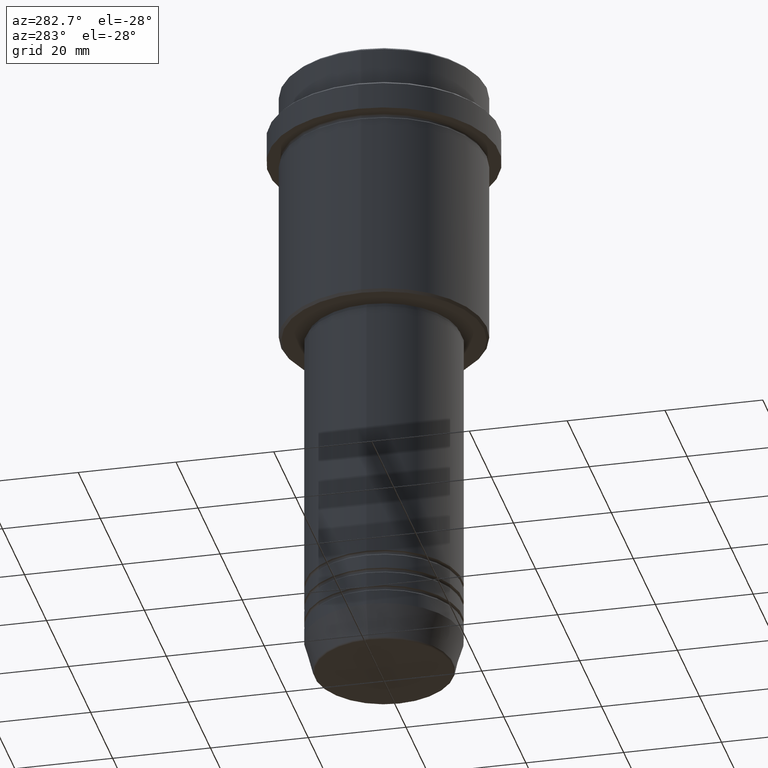
[diagram: clean part render]
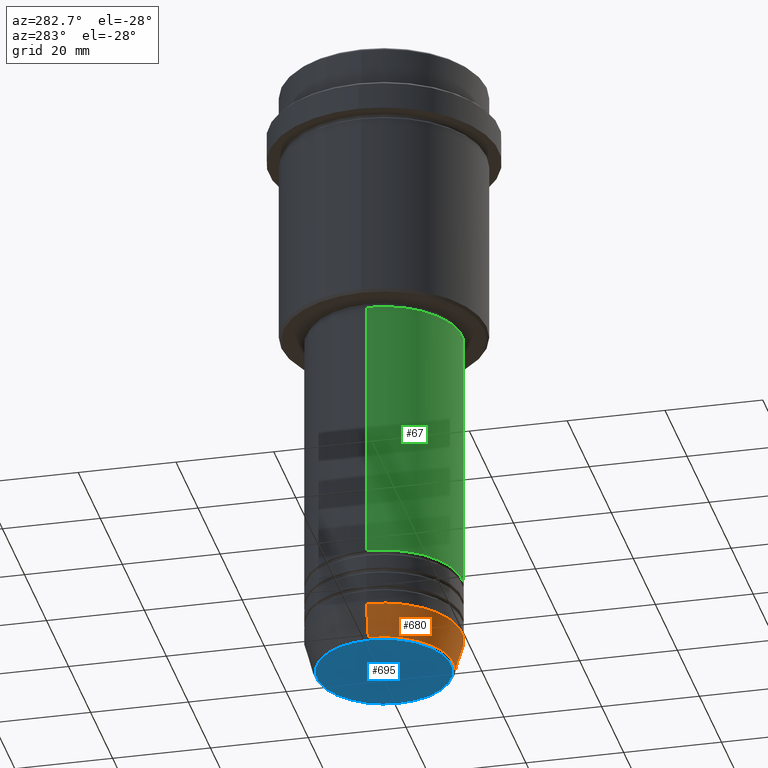
[diagram: same view with three faces highlighted in distinct colors, each labeled with its STEP entity id]
A machine part, auxiliary view with three faces highlighted in distinct colors.
Their STEP definitions:

[orange] entity #680 — the highlighted conical surface has half-angle 15 deg.
#19 = ORIENTED_EDGE ( 'NONE', *, *, #444, .F. ) ;
#30 = VERTEX_POINT ( 'NONE', #107 ) ;
#33 = VECTOR ( 'NONE', #190, 1000.000000000000000 ) ;
#92 = CARTESIAN_POINT ( 'NONE',  ( 0.000000000000000000, 0.000000000000000000, -123.0000000000000000 ) ) ;
#107 = CARTESIAN_POINT ( 'NONE',  ( 14.22365507213718949, 0.000000000000000000, -129.6294095225512706 ) ) ;
#146 = CIRCLE ( 'NONE', #386, 14.22365507213718949 ) ;
#153 = FACE_OUTER_BOUND ( 'NONE', #269, .T. ) ;
#172 = DIRECTION ( 'NONE',  ( -0.000000000000000000, -0.000000000000000000, 1.000000000000000000 ) ) ;
#184 = ORIENTED_EDGE ( 'NONE', *, *, #947, .F. ) ;
#190 = DIRECTION ( 'NONE',  ( 0.2588190451025213501, 0.000000000000000000, 0.9659258262890680902 ) ) ;
#241 = CARTESIAN_POINT ( 'NONE',  ( -14.22365507213718949, 1.850665122131323731E-15, -129.6294095225512706 ) ) ;
#248 = CARTESIAN_POINT ( 'NONE',  ( 16.00000000000000000, 0.000000000000000000, -123.0000000000000000 ) ) ;
#269 = EDGE_LOOP ( 'NONE', ( #184, #640, #447, #19 ) ) ;
#377 = EDGE_CURVE ( 'NONE', #1268, #30, #146, .T. ) ;
#386 = AXIS2_PLACEMENT_3D ( 'NONE', #848, #1417, #1178 ) ;
#390 = CARTESIAN_POINT ( 'NONE',  ( -16.00000000000000000, 1.959434878635765131E-15, -123.0000000000000000 ) ) ;
#444 = EDGE_CURVE ( 'NONE', #732, #1015, #529, .T. ) ;
#447 = ORIENTED_EDGE ( 'NONE', *, *, #1117, .T. ) ;
#482 = DIRECTION ( 'NONE',  ( 1.000000000000000000, 0.000000000000000000, 0.000000000000000000 ) ) ;
#529 = CIRCLE ( 'NONE', #813, 16.00000000000000000 ) ;
#538 = CARTESIAN_POINT ( 'NONE',  ( 0.000000000000000000, 0.000000000000000000, -123.0000000000000000 ) ) ;
#640 = ORIENTED_EDGE ( 'NONE', *, *, #377, .T. ) ;
#659 = LINE ( 'NONE', #1109, #1238 ) ;
#680 = ADVANCED_FACE ( 'NONE', ( #153 ), #1329, .T. ) ;
#705 = DIRECTION ( 'NONE',  ( 1.000000000000000000, 0.000000000000000000, 0.000000000000000000 ) ) ;
#732 = VERTEX_POINT ( 'NONE', #390 ) ;
#813 = AXIS2_PLACEMENT_3D ( 'NONE', #538, #172, #482 ) ;
#848 = CARTESIAN_POINT ( 'NONE',  ( 0.000000000000000000, 0.000000000000000000, -129.6294095225512706 ) ) ;
#947 = EDGE_CURVE ( 'NONE', #1268, #732, #659, .T. ) ;
#1015 = VERTEX_POINT ( 'NONE', #1049 ) ;
#1049 = CARTESIAN_POINT ( 'NONE',  ( 16.00000000000000000, 0.000000000000000000, -123.0000000000000000 ) ) ;
#1109 = CARTESIAN_POINT ( 'NONE',  ( -16.00000000000000000, 1.959434878635765131E-15, -123.0000000000000000 ) ) ;
#1117 = EDGE_CURVE ( 'NONE', #30, #1015, #1217, .T. ) ;
#1162 = AXIS2_PLACEMENT_3D ( 'NONE', #92, #1288, #705 ) ;
#1178 = DIRECTION ( 'NONE',  ( 1.000000000000000000, 0.000000000000000000, 0.000000000000000000 ) ) ;
#1217 = LINE ( 'NONE', #248, #33 ) ;
#1238 = VECTOR ( 'NONE', #1239, 1000.000000000000000 ) ;
#1239 = DIRECTION ( 'NONE',  ( -0.2588190451025213501, 3.169619151431772337E-17, 0.9659258262890680902 ) ) ;
#1268 = VERTEX_POINT ( 'NONE', #241 ) ;
#1288 = DIRECTION ( 'NONE',  ( -0.000000000000000000, -0.000000000000000000, 1.000000000000000000 ) ) ;
#1329 = CONICAL_SURFACE ( 'NONE', #1162, 16.00000000000000000, 0.2617993877991500740 ) ;
#1417 = DIRECTION ( 'NONE',  ( -0.000000000000000000, -0.000000000000000000, 1.000000000000000000 ) ) ;

[blue] entity #695 — the highlighted planar face has unit normal (0, -0, 1).
#3 = AXIS2_PLACEMENT_3D ( 'NONE', #826, #398, #715 ) ;
#13 = CARTESIAN_POINT ( 'NONE',  ( 0.000000000000000000, 0.000000000000000000, -130.0000000000000000 ) ) ;
#79 = CARTESIAN_POINT ( 'NONE',  ( 0.000000000000000000, 0.000000000000000000, -130.0000000000000000 ) ) ;
#86 = EDGE_CURVE ( 'NONE', #875, #198, #614, .T. ) ;
#89 = EDGE_LOOP ( 'NONE', ( #350, #220 ) ) ;
#136 = DIRECTION ( 'NONE',  ( 1.000000000000000000, 0.000000000000000000, 0.000000000000000000 ) ) ;
#198 = VERTEX_POINT ( 'NONE', #962 ) ;
#206 = DIRECTION ( 'NONE',  ( 1.000000000000000000, 0.000000000000000000, 0.000000000000000000 ) ) ;
#220 = ORIENTED_EDGE ( 'NONE', *, *, #584, .T. ) ;
#350 = ORIENTED_EDGE ( 'NONE', *, *, #86, .T. ) ;
#398 = DIRECTION ( 'NONE',  ( 0.000000000000000000, 0.000000000000000000, -1.000000000000000000 ) ) ;
#495 = PLANE ( 'NONE',  #1044 ) ;
#584 = EDGE_CURVE ( 'NONE', #198, #875, #953, .T. ) ;
#614 = CIRCLE ( 'NONE', #3, 13.74069215899265473 ) ;
#695 = ADVANCED_FACE ( 'NONE', ( #1042 ), #495, .F. ) ;
#715 = DIRECTION ( 'NONE',  ( 1.000000000000000000, 0.000000000000000000, 0.000000000000000000 ) ) ;
#826 = CARTESIAN_POINT ( 'NONE',  ( 0.000000000000000000, 0.000000000000000000, -130.0000000000000000 ) ) ;
#833 = DIRECTION ( 'NONE',  ( 0.000000000000000000, -0.000000000000000000, 1.000000000000000000 ) ) ;
#875 = VERTEX_POINT ( 'NONE', #1108 ) ;
#953 = CIRCLE ( 'NONE', #973, 13.74069215899265473 ) ;
#962 = CARTESIAN_POINT ( 'NONE',  ( -13.74069215899265473, 1.712322416342415197E-15, -130.0000000000000000 ) ) ;
#973 = AXIS2_PLACEMENT_3D ( 'NONE', #13, #1107, #136 ) ;
#1042 = FACE_OUTER_BOUND ( 'NONE', #89, .T. ) ;
#1044 = AXIS2_PLACEMENT_3D ( 'NONE', #79, #833, #206 ) ;
#1107 = DIRECTION ( 'NONE',  ( 0.000000000000000000, 0.000000000000000000, -1.000000000000000000 ) ) ;
#1108 = CARTESIAN_POINT ( 'NONE',  ( 13.74069215899265473, 0.000000000000000000, -130.0000000000000000 ) ) ;

[green] entity #67 — the highlighted cylindrical surface (partial cylindrical patch) has radius 16 mm, axis along (-0, -0, 1).
#26 = CARTESIAN_POINT ( 'NONE',  ( 16.00000000000000355, 0.000000000000000000, -55.99999999999997158 ) ) ;
#41 = DIRECTION ( 'NONE',  ( -0.000000000000000000, -0.000000000000000000, 1.000000000000000000 ) ) ;
#67 = ADVANCED_FACE ( 'NONE', ( #1272 ), #202, .T. ) ;
#120 = DIRECTION ( 'NONE',  ( -0.000000000000000000, -0.000000000000000000, 1.000000000000000000 ) ) ;
#140 = VERTEX_POINT ( 'NONE', #324 ) ;
#193 = VECTOR ( 'NONE', #856, 1000.000000000000000 ) ;
#202 = CYLINDRICAL_SURFACE ( 'NONE', #406, 16.00000000000000000 ) ;
#232 = VERTEX_POINT ( 'NONE', #462 ) ;
#274 = ORIENTED_EDGE ( 'NONE', *, *, #675, .T. ) ;
#324 = CARTESIAN_POINT ( 'NONE',  ( -16.00000000000000355, 1.959434878635765526E-15, -55.99999999999997158 ) ) ;
#342 = AXIS2_PLACEMENT_3D ( 'NONE', #990, #1294, #1082 ) ;
#362 = VECTOR ( 'NONE', #120, 1000.000000000000000 ) ;
#406 = AXIS2_PLACEMENT_3D ( 'NONE', #516, #951, #930 ) ;
#427 = LINE ( 'NONE', #1089, #362 ) ;
#462 = CARTESIAN_POINT ( 'NONE',  ( -16.00000000000000000, 1.959434878635765131E-15, -110.9999999999998721 ) ) ;
#475 = CIRCLE ( 'NONE', #1021, 16.00000000000000355 ) ;
#516 = CARTESIAN_POINT ( 'NONE',  ( 0.000000000000000000, 0.000000000000000000, 0.000000000000000000 ) ) ;
#593 = CARTESIAN_POINT ( 'NONE',  ( 16.00000000000000000, 0.000000000000000000, -110.9999999999998721 ) ) ;
#675 = EDGE_CURVE ( 'NONE', #232, #770, #1140, .T. ) ;
#770 = VERTEX_POINT ( 'NONE', #593 ) ;
#815 = CARTESIAN_POINT ( 'NONE',  ( 0.000000000000000000, 0.000000000000000000, -55.99999999999997158 ) ) ;
#841 = CARTESIAN_POINT ( 'NONE',  ( -16.00000000000000000, 1.959434878635765131E-15, 0.000000000000000000 ) ) ;
#847 = ORIENTED_EDGE ( 'NONE', *, *, #1053, .T. ) ;
#853 = VERTEX_POINT ( 'NONE', #26 ) ;
#856 = DIRECTION ( 'NONE',  ( -0.000000000000000000, -0.000000000000000000, 1.000000000000000000 ) ) ;
#889 = DIRECTION ( 'NONE',  ( 1.000000000000000000, 0.000000000000000000, 0.000000000000000000 ) ) ;
#930 = DIRECTION ( 'NONE',  ( 1.000000000000000000, 0.000000000000000000, 0.000000000000000000 ) ) ;
#940 = ORIENTED_EDGE ( 'NONE', *, *, #1144, .F. ) ;
#948 = EDGE_LOOP ( 'NONE', ( #940, #274, #847, #993 ) ) ;
#951 = DIRECTION ( 'NONE',  ( -0.000000000000000000, -0.000000000000000000, 1.000000000000000000 ) ) ;
#990 = CARTESIAN_POINT ( 'NONE',  ( 0.000000000000000000, 0.000000000000000000, -110.9999999999998721 ) ) ;
#993 = ORIENTED_EDGE ( 'NONE', *, *, #1223, .F. ) ;
#1021 = AXIS2_PLACEMENT_3D ( 'NONE', #815, #41, #889 ) ;
#1053 = EDGE_CURVE ( 'NONE', #770, #853, #427, .T. ) ;
#1082 = DIRECTION ( 'NONE',  ( 1.000000000000000000, 0.000000000000000000, 0.000000000000000000 ) ) ;
#1089 = CARTESIAN_POINT ( 'NONE',  ( 16.00000000000000000, 0.000000000000000000, 0.000000000000000000 ) ) ;
#1140 = CIRCLE ( 'NONE', #342, 16.00000000000000000 ) ;
#1144 = EDGE_CURVE ( 'NONE', #232, #140, #1180, .T. ) ;
#1180 = LINE ( 'NONE', #841, #193 ) ;
#1223 = EDGE_CURVE ( 'NONE', #140, #853, #475, .T. ) ;
#1272 = FACE_OUTER_BOUND ( 'NONE', #948, .T. ) ;
#1294 = DIRECTION ( 'NONE',  ( -0.000000000000000000, -0.000000000000000000, 1.000000000000000000 ) ) ;